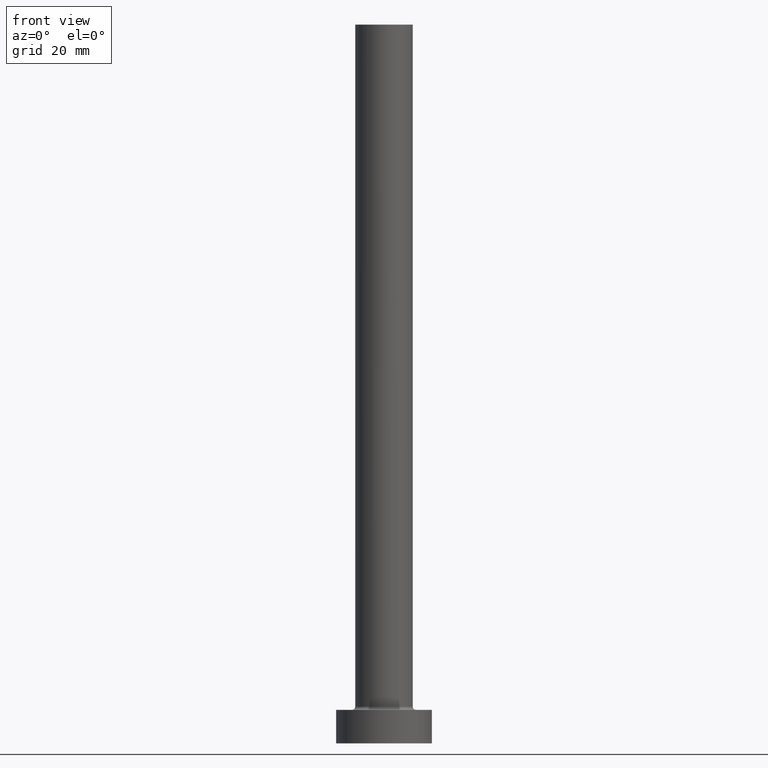
[diagram: clean part render]
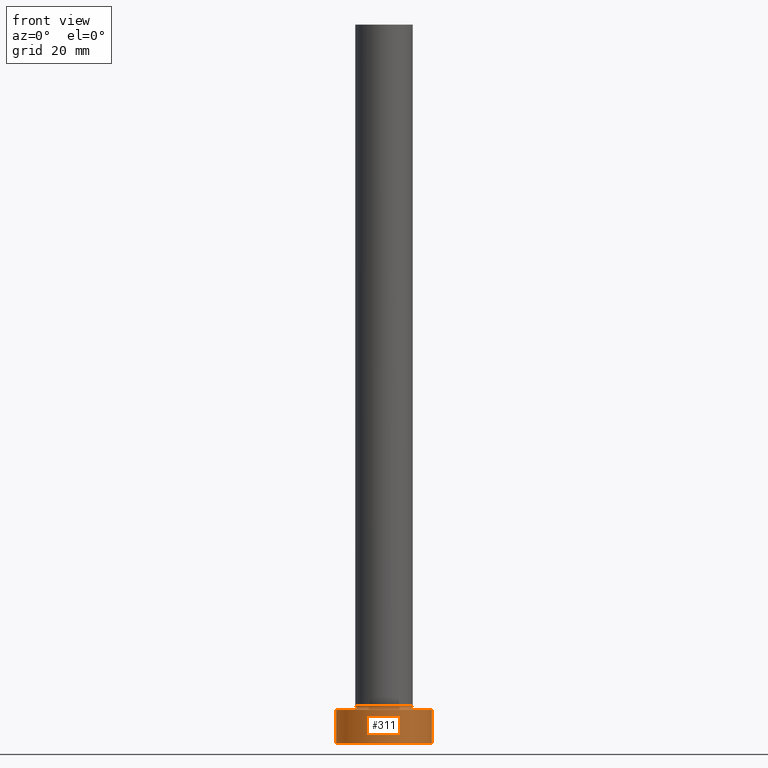
[diagram: same view with one face highlighted and labeled with its STEP entity id]
A machine part, front view. The second image highlights one B-rep face of the part: STEP entity #311.
In plain terms, the highlighted cylindrical surface (partial cylindrical patch) has radius 10 mm, axis along (-0, -0, -1).
Its self-contained STEP definition (entity closure, byte-faithful):
#20 = ORIENTED_EDGE ( 'NONE', *, *, #192, .F. ) ;
#29 = CARTESIAN_POINT ( 'NONE',  ( 0.000000000000000000, 0.000000000000000000, 7.000000000000000000 ) ) ;
#43 = DIRECTION ( 'NONE',  ( 0.000000000000000000, 0.000000000000000000, 1.000000000000000000 ) ) ;
#64 = DIRECTION ( 'NONE',  ( -0.000000000000000000, -0.000000000000000000, -1.000000000000000000 ) ) ;
#65 = AXIS2_PLACEMENT_3D ( 'NONE', #29, #64, #125 ) ;
#69 = VERTEX_POINT ( 'NONE', #229 ) ;
#80 = VECTOR ( 'NONE', #200, 1000.000000000000000 ) ;
#84 = ORIENTED_EDGE ( 'NONE', *, *, #305, .F. ) ;
#96 = AXIS2_PLACEMENT_3D ( 'NONE', #380, #199, #301 ) ;
#97 = CARTESIAN_POINT ( 'NONE',  ( -10.00000000000000000, 0.000000000000000000, 7.000000000000000000 ) ) ;
#125 = DIRECTION ( 'NONE',  ( -1.000000000000000000, 0.000000000000000000, 0.000000000000000000 ) ) ;
#152 = CARTESIAN_POINT ( 'NONE',  ( 10.00000000000000000, 1.224646799147353256E-15, 0.000000000000000000 ) ) ;
#159 = CARTESIAN_POINT ( 'NONE',  ( -10.00000000000000000, 0.000000000000000000, 0.000000000000000000 ) ) ;
#172 = EDGE_CURVE ( 'NONE', #69, #267, #265, .T. ) ;
#192 = EDGE_CURVE ( 'NONE', #253, #381, #343, .T. ) ;
#199 = DIRECTION ( 'NONE',  ( 0.000000000000000000, 0.000000000000000000, 1.000000000000000000 ) ) ;
#200 = DIRECTION ( 'NONE',  ( -0.000000000000000000, -0.000000000000000000, -1.000000000000000000 ) ) ;
#207 = EDGE_CURVE ( 'NONE', #267, #381, #247, .T. ) ;
#229 = CARTESIAN_POINT ( 'NONE',  ( -10.00000000000000000, 0.000000000000000000, 7.000000000000000000 ) ) ;
#238 = AXIS2_PLACEMENT_3D ( 'NONE', #357, #43, #313 ) ;
#242 = FACE_OUTER_BOUND ( 'NONE', #331, .T. ) ;
#247 = CIRCLE ( 'NONE', #238, 10.00000000000000000 ) ;
#251 = CARTESIAN_POINT ( 'NONE',  ( 10.00000000000000000, 1.224646799147353256E-15, 7.000000000000000000 ) ) ;
#253 = VERTEX_POINT ( 'NONE', #289 ) ;
#265 = LINE ( 'NONE', #97, #80 ) ;
#267 = VERTEX_POINT ( 'NONE', #159 ) ;
#278 = ORIENTED_EDGE ( 'NONE', *, *, #207, .T. ) ;
#287 = CIRCLE ( 'NONE', #96, 10.00000000000000000 ) ;
#289 = CARTESIAN_POINT ( 'NONE',  ( 10.00000000000000000, 1.224646799147353256E-15, 7.000000000000000000 ) ) ;
#301 = DIRECTION ( 'NONE',  ( 1.000000000000000000, 0.000000000000000000, 0.000000000000000000 ) ) ;
#305 = EDGE_CURVE ( 'NONE', #69, #253, #287, .T. ) ;
#311 = ADVANCED_FACE ( 'NONE', ( #242 ), #377, .T. ) ;
#313 = DIRECTION ( 'NONE',  ( 1.000000000000000000, 0.000000000000000000, 0.000000000000000000 ) ) ;
#331 = EDGE_LOOP ( 'NONE', ( #20, #84, #356, #278 ) ) ;
#343 = LINE ( 'NONE', #251, #362 ) ;
#356 = ORIENTED_EDGE ( 'NONE', *, *, #172, .T. ) ;
#357 = CARTESIAN_POINT ( 'NONE',  ( 0.000000000000000000, 0.000000000000000000, 0.000000000000000000 ) ) ;
#362 = VECTOR ( 'NONE', #393, 1000.000000000000000 ) ;
#377 = CYLINDRICAL_SURFACE ( 'NONE', #65, 10.00000000000000000 ) ;
#380 = CARTESIAN_POINT ( 'NONE',  ( 0.000000000000000000, 0.000000000000000000, 7.000000000000000000 ) ) ;
#381 = VERTEX_POINT ( 'NONE', #152 ) ;
#393 = DIRECTION ( 'NONE',  ( -0.000000000000000000, -0.000000000000000000, -1.000000000000000000 ) ) ;